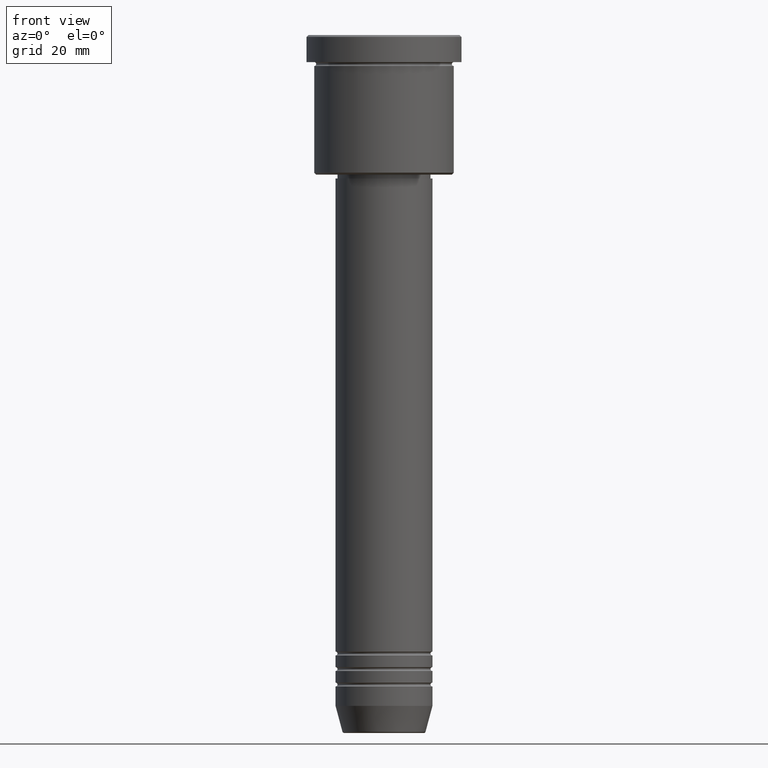
[diagram: clean part render]
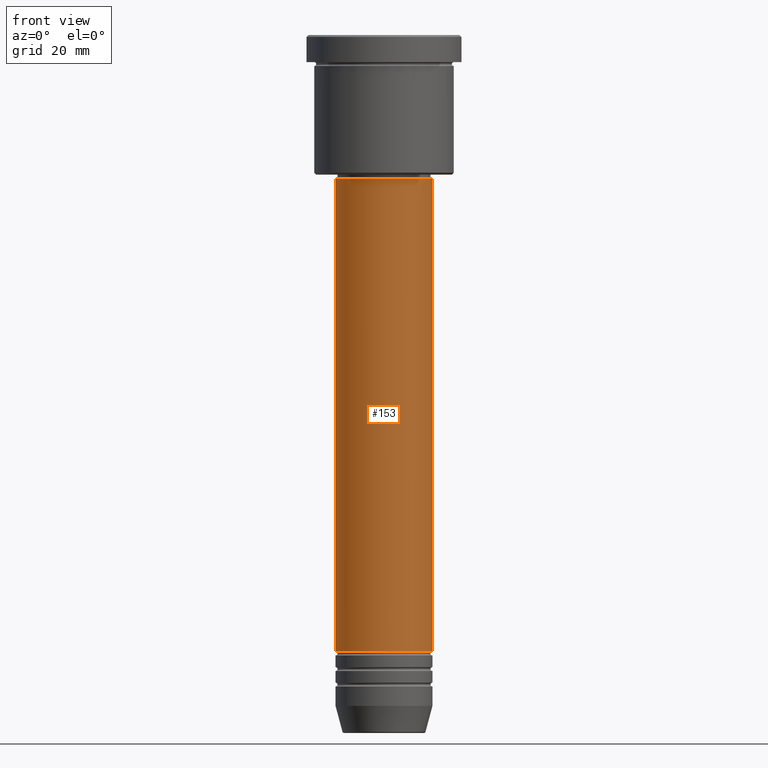
[diagram: same view with one face highlighted and labeled with its STEP entity id]
A machine part, front view. The second image highlights one B-rep face of the part: STEP entity #153.
In plain terms, the highlighted cylindrical surface (partial cylindrical patch) has radius 12.5 mm, axis along (-0, -0, 1).
Its self-contained STEP definition (entity closure, byte-faithful):
#2 = EDGE_CURVE ( 'NONE', #472, #643, #932, .T. ) ;
#4 = CARTESIAN_POINT ( 'NONE',  ( 12.50000000000000000, 0.000000000000000000, -37.00000000000002842 ) ) ;
#21 = ORIENTED_EDGE ( 'NONE', *, *, #2, .T. ) ;
#29 = DIRECTION ( 'NONE',  ( -0.000000000000000000, -0.000000000000000000, 1.000000000000000000 ) ) ;
#34 = EDGE_CURVE ( 'NONE', #814, #643, #1061, .T. ) ;
#38 = DIRECTION ( 'NONE',  ( 1.000000000000000000, 0.000000000000000000, 0.000000000000000000 ) ) ;
#55 = AXIS2_PLACEMENT_3D ( 'NONE', #1137, #668, #519 ) ;
#65 = ORIENTED_EDGE ( 'NONE', *, *, #610, .T. ) ;
#101 = CARTESIAN_POINT ( 'NONE',  ( -12.50000000000000000, 1.530808498934191521E-15, -159.0000000000000000 ) ) ;
#116 = CARTESIAN_POINT ( 'NONE',  ( 12.50000000000000000, 0.000000000000000000, 0.000000000000000000 ) ) ;
#141 = CARTESIAN_POINT ( 'NONE',  ( -12.50000000000000000, 1.530808498934191521E-15, 0.000000000000000000 ) ) ;
#153 = ADVANCED_FACE ( 'NONE', ( #428 ), #686, .T. ) ;
#164 = CIRCLE ( 'NONE', #1166, 12.50000000000000000 ) ;
#235 = ORIENTED_EDGE ( 'NONE', *, *, #34, .F. ) ;
#277 = EDGE_LOOP ( 'NONE', ( #443, #65, #21, #235 ) ) ;
#283 = CARTESIAN_POINT ( 'NONE',  ( 12.50000000000000000, 0.000000000000000000, -159.0000000000000000 ) ) ;
#317 = AXIS2_PLACEMENT_3D ( 'NONE', #833, #405, #38 ) ;
#405 = DIRECTION ( 'NONE',  ( -0.000000000000000000, -0.000000000000000000, 1.000000000000000000 ) ) ;
#428 = FACE_OUTER_BOUND ( 'NONE', #277, .T. ) ;
#443 = ORIENTED_EDGE ( 'NONE', *, *, #803, .F. ) ;
#472 = VERTEX_POINT ( 'NONE', #283 ) ;
#519 = DIRECTION ( 'NONE',  ( 1.000000000000000000, 0.000000000000000000, 0.000000000000000000 ) ) ;
#522 = LINE ( 'NONE', #141, #693 ) ;
#610 = EDGE_CURVE ( 'NONE', #1116, #472, #164, .T. ) ;
#643 = VERTEX_POINT ( 'NONE', #4 ) ;
#650 = CARTESIAN_POINT ( 'NONE',  ( 0.000000000000000000, 0.000000000000000000, -159.0000000000000000 ) ) ;
#668 = DIRECTION ( 'NONE',  ( -0.000000000000000000, -0.000000000000000000, 1.000000000000000000 ) ) ;
#685 = CARTESIAN_POINT ( 'NONE',  ( -12.50000000000000000, 1.530808498934191521E-15, -37.00000000000002842 ) ) ;
#686 = CYLINDRICAL_SURFACE ( 'NONE', #55, 12.50000000000000000 ) ;
#693 = VECTOR ( 'NONE', #986, 1000.000000000000000 ) ;
#751 = VECTOR ( 'NONE', #29, 1000.000000000000000 ) ;
#803 = EDGE_CURVE ( 'NONE', #1116, #814, #522, .T. ) ;
#814 = VERTEX_POINT ( 'NONE', #685 ) ;
#833 = CARTESIAN_POINT ( 'NONE',  ( 0.000000000000000000, 0.000000000000000000, -37.00000000000002842 ) ) ;
#842 = DIRECTION ( 'NONE',  ( -0.000000000000000000, -0.000000000000000000, 1.000000000000000000 ) ) ;
#921 = DIRECTION ( 'NONE',  ( 1.000000000000000000, 0.000000000000000000, 0.000000000000000000 ) ) ;
#932 = LINE ( 'NONE', #116, #751 ) ;
#986 = DIRECTION ( 'NONE',  ( -0.000000000000000000, -0.000000000000000000, 1.000000000000000000 ) ) ;
#1061 = CIRCLE ( 'NONE', #317, 12.50000000000000000 ) ;
#1116 = VERTEX_POINT ( 'NONE', #101 ) ;
#1137 = CARTESIAN_POINT ( 'NONE',  ( 0.000000000000000000, 0.000000000000000000, 0.000000000000000000 ) ) ;
#1166 = AXIS2_PLACEMENT_3D ( 'NONE', #650, #842, #921 ) ;